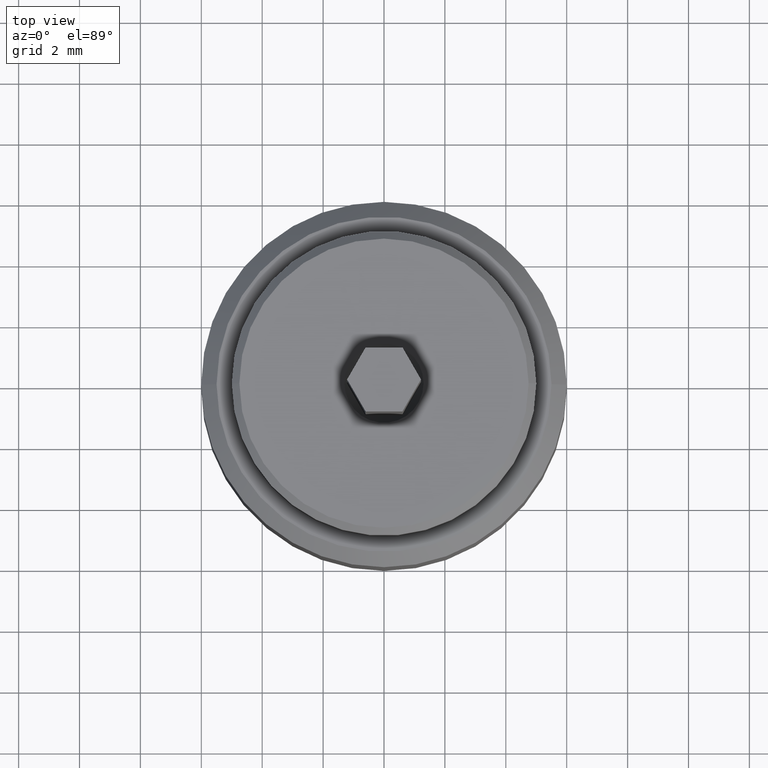
[diagram: clean part render]
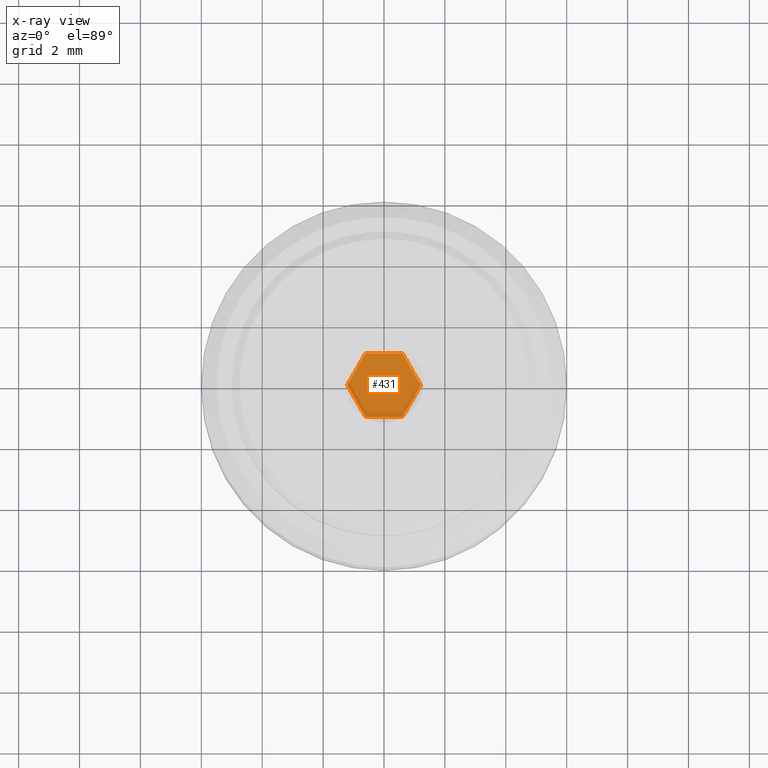
[diagram: x-ray — body ghosted, one internal face saturated and labeled with its STEP entity id]
A machine part, top view, then the same camera in x-ray: the body is ghosted and one INTERNAL B-rep face — a face not visible from any outside direction — is saturated and labeled: STEP entity #431.
In plain terms, the highlighted planar face has unit normal (0, 0, 1).
Its self-contained STEP definition (entity closure, byte-faithful):
#18 = LINE ( 'NONE', #382, #213 ) ;
#48 = VERTEX_POINT ( 'NONE', #532 ) ;
#75 = DIRECTION ( 'NONE',  ( 0.5000000000000018874, 0.8660254037844375974, 0.000000000000000000 ) ) ;
#104 = CARTESIAN_POINT ( 'NONE',  ( -0.6062177826491047528, 1.050000000000001821, 6.000000000000000000 ) ) ;
#116 = EDGE_CURVE ( 'NONE', #240, #531, #18, .T. ) ;
#213 = VECTOR ( 'NONE', #75, 1000.000000000000000 ) ;
#215 = VECTOR ( 'NONE', #889, 1000.000000000000227 ) ;
#239 = CARTESIAN_POINT ( 'NONE',  ( -0.6062177826491091936, -1.049999999999999600, 6.000000000000000000 ) ) ;
#240 = VERTEX_POINT ( 'NONE', #629 ) ;
#287 = LINE ( 'NONE', #360, #215 ) ;
#288 = ORIENTED_EDGE ( 'NONE', *, *, #672, .F. ) ;
#296 = CARTESIAN_POINT ( 'NONE',  ( 0.6062177826491099708, 1.049999999999998934, 6.000000000000000000 ) ) ;
#307 = ORIENTED_EDGE ( 'NONE', *, *, #721, .F. ) ;
#309 = LINE ( 'NONE', #296, #648 ) ;
#360 = CARTESIAN_POINT ( 'NONE',  ( -1.212435565298213946, 2.475030271877065591E-15, 6.000000000000000000 ) ) ;
#369 = DIRECTION ( 'NONE',  ( 1.000000000000000000, -2.325010688521794335E-15, 0.000000000000000000 ) ) ;
#377 = EDGE_CURVE ( 'NONE', #48, #433, #287, .T. ) ;
#382 = CARTESIAN_POINT ( 'NONE',  ( 0.6062177826491048638, -1.050000000000002265, 6.000000000000000000 ) ) ;
#417 = EDGE_CURVE ( 'NONE', #927, #48, #429, .T. ) ;
#429 = LINE ( 'NONE', #746, #551 ) ;
#431 = ADVANCED_FACE ( 'NONE', ( #967 ), #577, .F. ) ;
#433 = VERTEX_POINT ( 'NONE', #574 ) ;
#437 = DIRECTION ( 'NONE',  ( -0.5000000000000015543, -0.8660254037844378194, 0.000000000000000000 ) ) ;
#444 = CARTESIAN_POINT ( 'NONE',  ( 1.212435565298214390, -3.035766082959412415E-15, 6.000000000000000000 ) ) ;
#445 = ORIENTED_EDGE ( 'NONE', *, *, #377, .F. ) ;
#528 = VECTOR ( 'NONE', #369, 1000.000000000000000 ) ;
#531 = VERTEX_POINT ( 'NONE', #444 ) ;
#532 = CARTESIAN_POINT ( 'NONE',  ( -1.212435565298213946, 2.475030271877065591E-15, 6.000000000000000000 ) ) ;
#547 = LINE ( 'NONE', #866, #548 ) ;
#548 = VECTOR ( 'NONE', #819, 1000.000000000000114 ) ;
#551 = VECTOR ( 'NONE', #437, 1000.000000000000000 ) ;
#553 = ORIENTED_EDGE ( 'NONE', *, *, #116, .F. ) ;
#574 = CARTESIAN_POINT ( 'NONE',  ( -0.6062177826491091936, -1.049999999999999600, 6.000000000000000000 ) ) ;
#577 = PLANE ( 'NONE',  #883 ) ;
#586 = DIRECTION ( 'NONE',  ( 1.000000000000000000, 0.000000000000000000, -0.000000000000000000 ) ) ;
#616 = DIRECTION ( 'NONE',  ( -1.000000000000000000, 2.503857664561930996E-15, 0.000000000000000000 ) ) ;
#629 = CARTESIAN_POINT ( 'NONE',  ( 0.6062177826491048638, -1.050000000000002265, 6.000000000000000000 ) ) ;
#637 = CARTESIAN_POINT ( 'NONE',  ( 0.6062177826491099708, 1.049999999999998934, 6.000000000000000000 ) ) ;
#639 = ORIENTED_EDGE ( 'NONE', *, *, #968, .F. ) ;
#648 = VECTOR ( 'NONE', #616, 1000.000000000000000 ) ;
#664 = CARTESIAN_POINT ( 'NONE',  ( 0.000000000000000000, 0.000000000000000000, 6.000000000000000000 ) ) ;
#672 = EDGE_CURVE ( 'NONE', #873, #927, #309, .T. ) ;
#721 = EDGE_CURVE ( 'NONE', #433, #240, #925, .T. ) ;
#738 = DIRECTION ( 'NONE',  ( 0.000000000000000000, 0.000000000000000000, 1.000000000000000000 ) ) ;
#746 = CARTESIAN_POINT ( 'NONE',  ( -0.6062177826491047528, 1.050000000000001821, 6.000000000000000000 ) ) ;
#819 = DIRECTION ( 'NONE',  ( -0.4999999999999977240, 0.8660254037844398178, 0.000000000000000000 ) ) ;
#827 = EDGE_LOOP ( 'NONE', ( #639, #553, #307, #445, #975, #288 ) ) ;
#866 = CARTESIAN_POINT ( 'NONE',  ( 1.212435565298214390, -3.035766082959412415E-15, 6.000000000000000000 ) ) ;
#873 = VERTEX_POINT ( 'NONE', #637 ) ;
#883 = AXIS2_PLACEMENT_3D ( 'NONE', #664, #738, #586 ) ;
#889 = DIRECTION ( 'NONE',  ( 0.4999999999999978906, -0.8660254037844397068, 0.000000000000000000 ) ) ;
#925 = LINE ( 'NONE', #239, #528 ) ;
#927 = VERTEX_POINT ( 'NONE', #104 ) ;
#967 = FACE_OUTER_BOUND ( 'NONE', #827, .T. ) ;
#968 = EDGE_CURVE ( 'NONE', #531, #873, #547, .T. ) ;
#975 = ORIENTED_EDGE ( 'NONE', *, *, #417, .F. ) ;